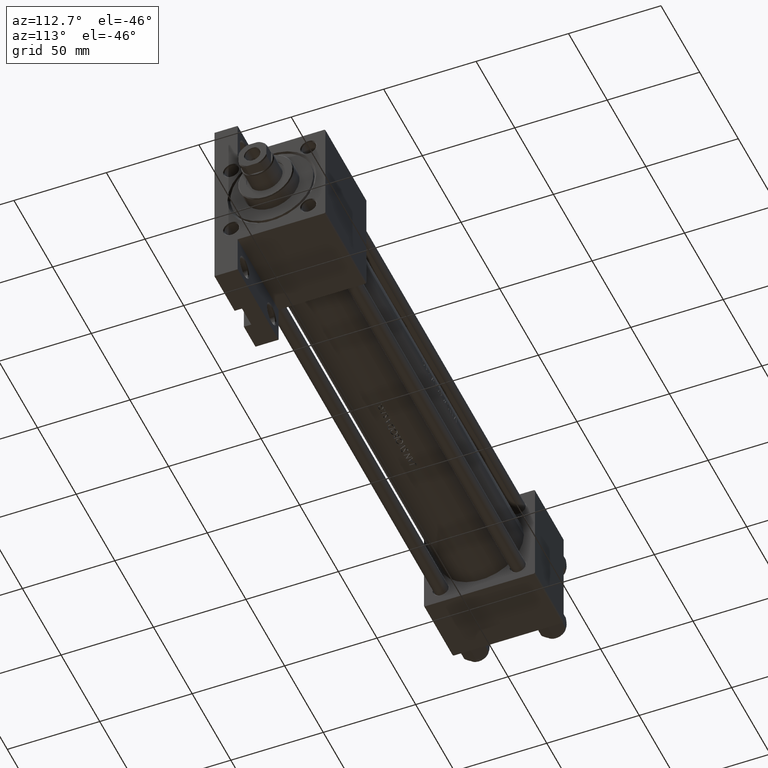
[diagram: clean part render]
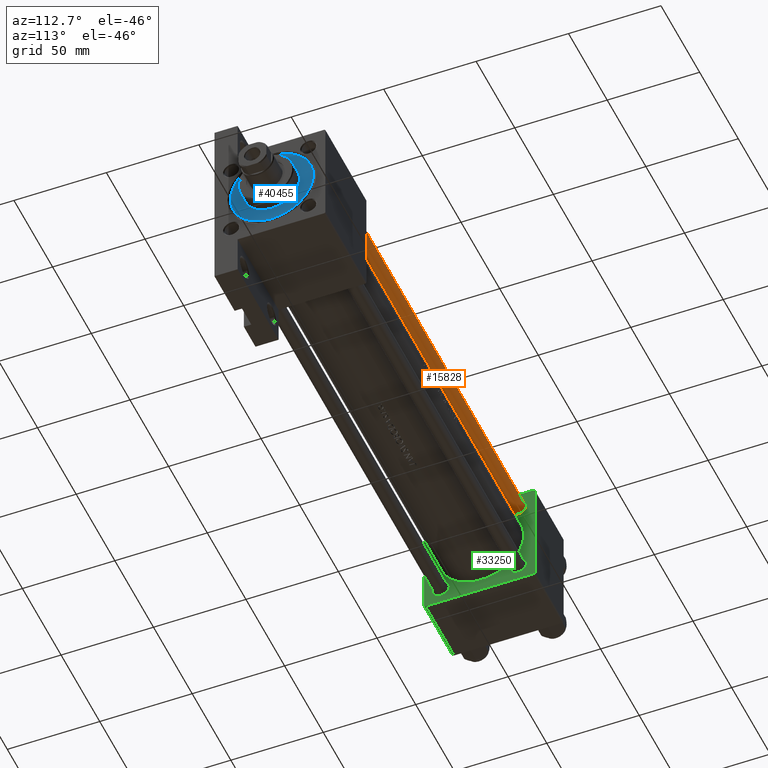
[diagram: same view with three faces highlighted in distinct colors, each labeled with its STEP entity id]
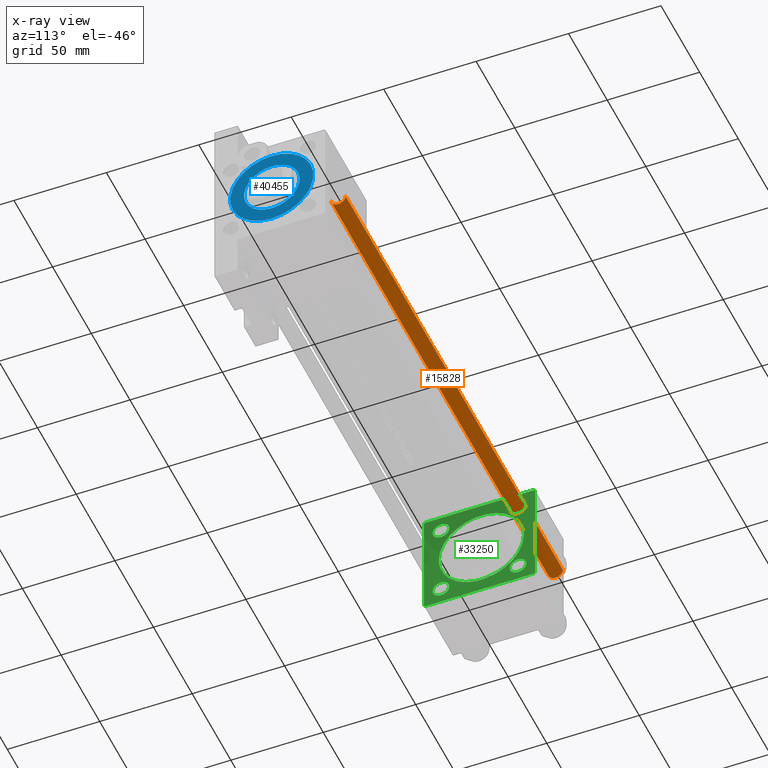
[diagram: x-ray of the same camera — body ghosted, the three highlighted faces saturated]
A machine part, auxiliary view with three faces highlighted in distinct colors.
The next image is the same camera in x-ray (body ghosted, the three faces saturated) — at least one of them is partly hidden behind the body in this view.
Their STEP definitions:

[orange] entity #15828 — the highlighted cylindrical surface (edge-blend (fillet) strip) has radius 4 mm, axis along (1, -0, 0).
#1460 = DIRECTION ( 'NONE',  ( 1.000000000000000000, 0.000000000000000000, 0.000000000000000000 ) ) ;
#2012 = VECTOR ( 'NONE', #28932, 1000.000000000000000 ) ;
#8051 = VERTEX_POINT ( 'NONE', #27177 ) ;
#8538 = CARTESIAN_POINT ( 'NONE',  ( 4.000000000000000000, 4.898587196589412829E-16, 281.5000000000000000 ) ) ;
#8824 = ORIENTED_EDGE ( 'NONE', *, *, #22101, .T. ) ;
#9134 = ORIENTED_EDGE ( 'NONE', *, *, #17937, .F. ) ;
#11052 = DIRECTION ( 'NONE',  ( -0.000000000000000000, -0.000000000000000000, -1.000000000000000000 ) ) ;
#13973 = CARTESIAN_POINT ( 'NONE',  ( -4.000000000000000000, 0.000000000000000000, 0.5000000000000559552 ) ) ;
#14753 = CARTESIAN_POINT ( 'NONE',  ( 0.000000000000000000, 0.000000000000000000, 282.0000000000000000 ) ) ;
#15828 = ADVANCED_FACE ( 'NONE', ( #44590 ), #22137, .T. ) ;
#17831 = LINE ( 'NONE', #25230, #2012 ) ;
#17937 = EDGE_CURVE ( 'NONE', #8051, #32412, #20787, .T. ) ;
#20174 = DIRECTION ( 'NONE',  ( -0.000000000000000000, -0.000000000000000000, 1.000000000000000000 ) ) ;
#20787 = LINE ( 'NONE', #35848, #37940 ) ;
#20835 = VERTEX_POINT ( 'NONE', #26588 ) ;
#22101 = EDGE_CURVE ( 'NONE', #20835, #32412, #28486, .T. ) ;
#22137 = CYLINDRICAL_SURFACE ( 'NONE', #25274, 4.000000000000000000 ) ;
#25230 = CARTESIAN_POINT ( 'NONE',  ( 4.000000000000000000, 4.898587196589412829E-16, 282.0000000000000000 ) ) ;
#25274 = AXIS2_PLACEMENT_3D ( 'NONE', #14753, #11052, #26063 ) ;
#26063 = DIRECTION ( 'NONE',  ( -1.000000000000000000, 0.000000000000000000, 0.000000000000000000 ) ) ;
#26588 = CARTESIAN_POINT ( 'NONE',  ( 4.000000000000000000, 4.898587196589412829E-16, 0.5000000000000559552 ) ) ;
#27122 = AXIS2_PLACEMENT_3D ( 'NONE', #46377, #39225, #31566 ) ;
#27177 = CARTESIAN_POINT ( 'NONE',  ( -4.000000000000000000, 0.000000000000000000, 281.5000000000000000 ) ) ;
#27216 = EDGE_CURVE ( 'NONE', #8051, #42656, #42074, .T. ) ;
#28486 = CIRCLE ( 'NONE', #34814, 4.000000000000000000 ) ;
#28932 = DIRECTION ( 'NONE',  ( -0.000000000000000000, -0.000000000000000000, -1.000000000000000000 ) ) ;
#31566 = DIRECTION ( 'NONE',  ( 1.000000000000000000, 0.000000000000000000, 0.000000000000000000 ) ) ;
#32389 = DIRECTION ( 'NONE',  ( -0.000000000000000000, -0.000000000000000000, -1.000000000000000000 ) ) ;
#32412 = VERTEX_POINT ( 'NONE', #13973 ) ;
#33501 = ORIENTED_EDGE ( 'NONE', *, *, #45645, .T. ) ;
#34814 = AXIS2_PLACEMENT_3D ( 'NONE', #39167, #20174, #1460 ) ;
#35317 = EDGE_LOOP ( 'NONE', ( #37739, #33501, #8824, #9134 ) ) ;
#35848 = CARTESIAN_POINT ( 'NONE',  ( -4.000000000000000000, 0.000000000000000000, 282.0000000000000000 ) ) ;
#37739 = ORIENTED_EDGE ( 'NONE', *, *, #27216, .T. ) ;
#37940 = VECTOR ( 'NONE', #32389, 1000.000000000000000 ) ;
#39167 = CARTESIAN_POINT ( 'NONE',  ( 0.000000000000000000, 0.000000000000000000, 0.5000000000000559552 ) ) ;
#39225 = DIRECTION ( 'NONE',  ( 0.000000000000000000, 0.000000000000000000, -1.000000000000000000 ) ) ;
#42074 = CIRCLE ( 'NONE', #27122, 4.000000000000000000 ) ;
#42656 = VERTEX_POINT ( 'NONE', #8538 ) ;
#44590 = FACE_OUTER_BOUND ( 'NONE', #35317, .T. ) ;
#45645 = EDGE_CURVE ( 'NONE', #42656, #20835, #17831, .T. ) ;
#46377 = CARTESIAN_POINT ( 'NONE',  ( 0.000000000000000000, 0.000000000000000000, 281.5000000000000000 ) ) ;

[blue] entity #40455 — the highlighted planar face has unit normal (1, 0, 0).
#496 = EDGE_CURVE ( 'NONE', #36124, #35655, #2513, .T. ) ;
#1737 = AXIS2_PLACEMENT_3D ( 'NONE', #38181, #9076, #26822 ) ;
#2317 = CARTESIAN_POINT ( 'NONE',  ( 0.000000000000000000, 0.000000000000000000, 28.69999999999999929 ) ) ;
#2425 = DIRECTION ( 'NONE',  ( 1.000000000000000000, 0.000000000000000000, 0.000000000000000000 ) ) ;
#2513 = CIRCLE ( 'NONE', #39527, 15.00000000000000000 ) ;
#2560 = FACE_BOUND ( 'NONE', #37857, .T. ) ;
#4028 = EDGE_LOOP ( 'NONE', ( #34813, #33672 ) ) ;
#6379 = DIRECTION ( 'NONE',  ( 0.000000000000000000, 0.000000000000000000, 1.000000000000000000 ) ) ;
#6523 = PLANE ( 'NONE',  #31740 ) ;
#6624 = CARTESIAN_POINT ( 'NONE',  ( 0.000000000000000000, 0.000000000000000000, 28.69999999999999929 ) ) ;
#8006 = CIRCLE ( 'NONE', #1737, 15.00000000000000000 ) ;
#8978 = CIRCLE ( 'NONE', #19186, 22.50000000000000355 ) ;
#9076 = DIRECTION ( 'NONE',  ( 0.000000000000000000, 0.000000000000000000, 1.000000000000000000 ) ) ;
#10071 = DIRECTION ( 'NONE',  ( 1.000000000000000000, 0.000000000000000000, 0.000000000000000000 ) ) ;
#11956 = VERTEX_POINT ( 'NONE', #44526 ) ;
#13394 = FACE_OUTER_BOUND ( 'NONE', #4028, .T. ) ;
#16396 = DIRECTION ( 'NONE',  ( 0.000000000000000000, 0.000000000000000000, 1.000000000000000000 ) ) ;
#16809 = ORIENTED_EDGE ( 'NONE', *, *, #496, .F. ) ;
#16847 = EDGE_CURVE ( 'NONE', #35655, #36124, #8006, .T. ) ;
#17334 = DIRECTION ( 'NONE',  ( 1.000000000000000000, 0.000000000000000000, -0.000000000000000000 ) ) ;
#19186 = AXIS2_PLACEMENT_3D ( 'NONE', #6624, #6379, #2425 ) ;
#26411 = EDGE_CURVE ( 'NONE', #11956, #32274, #8978, .T. ) ;
#26822 = DIRECTION ( 'NONE',  ( 1.000000000000000000, 0.000000000000000000, 0.000000000000000000 ) ) ;
#27187 = CIRCLE ( 'NONE', #28743, 22.50000000000000355 ) ;
#28743 = AXIS2_PLACEMENT_3D ( 'NONE', #47531, #47777, #10071 ) ;
#29580 = EDGE_CURVE ( 'NONE', #32274, #11956, #27187, .T. ) ;
#30945 = CARTESIAN_POINT ( 'NONE',  ( 0.000000000000000000, 0.000000000000000000, 28.69999999999999929 ) ) ;
#31423 = DIRECTION ( 'NONE',  ( 1.000000000000000000, 0.000000000000000000, 0.000000000000000000 ) ) ;
#31482 = ORIENTED_EDGE ( 'NONE', *, *, #16847, .F. ) ;
#31740 = AXIS2_PLACEMENT_3D ( 'NONE', #2317, #32378, #17334 ) ;
#32274 = VERTEX_POINT ( 'NONE', #33681 ) ;
#32378 = DIRECTION ( 'NONE',  ( 0.000000000000000000, 0.000000000000000000, 1.000000000000000000 ) ) ;
#33672 = ORIENTED_EDGE ( 'NONE', *, *, #26411, .T. ) ;
#33681 = CARTESIAN_POINT ( 'NONE',  ( -22.50000000000000355, 0.000000000000000000, 28.69999999999999929 ) ) ;
#34813 = ORIENTED_EDGE ( 'NONE', *, *, #29580, .T. ) ;
#35655 = VERTEX_POINT ( 'NONE', #39521 ) ;
#36124 = VERTEX_POINT ( 'NONE', #44010 ) ;
#37857 = EDGE_LOOP ( 'NONE', ( #16809, #31482 ) ) ;
#38181 = CARTESIAN_POINT ( 'NONE',  ( 0.000000000000000000, 0.000000000000000000, 28.69999999999999929 ) ) ;
#39521 = CARTESIAN_POINT ( 'NONE',  ( 15.00000000000000000, 1.836970198721029589E-15, 28.69999999999999929 ) ) ;
#39527 = AXIS2_PLACEMENT_3D ( 'NONE', #30945, #16396, #31423 ) ;
#40455 = ADVANCED_FACE ( 'NONE', ( #2560, #13394 ), #6523, .T. ) ;
#44010 = CARTESIAN_POINT ( 'NONE',  ( -15.00000000000000000, 0.000000000000000000, 28.69999999999999929 ) ) ;
#44526 = CARTESIAN_POINT ( 'NONE',  ( 22.50000000000000355, 2.755455298081545172E-15, 28.69999999999999929 ) ) ;
#47531 = CARTESIAN_POINT ( 'NONE',  ( 0.000000000000000000, 0.000000000000000000, 28.69999999999999929 ) ) ;
#47777 = DIRECTION ( 'NONE',  ( 0.000000000000000000, 0.000000000000000000, 1.000000000000000000 ) ) ;

[green] entity #33250 — the highlighted planar face has unit normal (-1, 0, -0).
#361 = DIRECTION ( 'NONE',  ( -1.000000000000000000, 0.000000000000000000, -0.000000000000000000 ) ) ;
#491 = CARTESIAN_POINT ( 'NONE',  ( 37.00000000000000000, 29.99999999999999289, -29.50000000000000000 ) ) ;
#629 = VECTOR ( 'NONE', #36515, 1000.000000000000114 ) ;
#1111 = CARTESIAN_POINT ( 'NONE',  ( 37.00000000000000711, 2.694222958124176809E-15, -22.00000000000000000 ) ) ;
#1121 = LINE ( 'NONE', #35134, #13316 ) ;
#1801 = AXIS2_PLACEMENT_3D ( 'NONE', #12567, #1964, #43126 ) ;
#1964 = DIRECTION ( 'NONE',  ( -1.000000000000000000, 0.000000000000000000, -0.000000000000000000 ) ) ;
#2013 = CARTESIAN_POINT ( 'NONE',  ( 37.00000000000000000, 20.84999999999999787, 20.85000000000000142 ) ) ;
#2378 = EDGE_CURVE ( 'NONE', #28726, #21878, #32460, .T. ) ;
#2593 = ORIENTED_EDGE ( 'NONE', *, *, #8909, .T. ) ;
#2998 = CARTESIAN_POINT ( 'NONE',  ( 37.00000000000000000, -20.84999999999999076, -20.85000000000000497 ) ) ;
#3463 = CARTESIAN_POINT ( 'NONE',  ( 37.00000000000000000, 20.84999999999999787, -25.34999999999994813 ) ) ;
#3860 = VERTEX_POINT ( 'NONE', #37776 ) ;
#3879 = LINE ( 'NONE', #14718, #19826 ) ;
#3965 = CARTESIAN_POINT ( 'NONE',  ( 37.00000000000000000, -20.84999999999999076, 16.35000000000005471 ) ) ;
#4572 = VERTEX_POINT ( 'NONE', #37780 ) ;
#4644 = LINE ( 'NONE', #36105, #29712 ) ;
#5196 = ORIENTED_EDGE ( 'NONE', *, *, #23916, .T. ) ;
#5234 = EDGE_LOOP ( 'NONE', ( #13851, #45436, #6798, #13996, #14037, #5196, #19630, #2593 ) ) ;
#5413 = EDGE_CURVE ( 'NONE', #46495, #45533, #47901, .T. ) ;
#5490 = CARTESIAN_POINT ( 'NONE',  ( 37.00000000000000711, -1.224646799147354686E-16, 24.00000000000000000 ) ) ;
#5621 = CARTESIAN_POINT ( 'NONE',  ( 37.00000000000000000, 0.000000000000000000, 0.000000000000000000 ) ) ;
#5819 = DIRECTION ( 'NONE',  ( -1.000000000000000000, 0.000000000000000000, -0.000000000000000000 ) ) ;
#6146 = EDGE_CURVE ( 'NONE', #38043, #20582, #22132, .T. ) ;
#6183 = VECTOR ( 'NONE', #44818, 1000.000000000000114 ) ;
#6226 = LINE ( 'NONE', #10152, #629 ) ;
#6250 = VERTEX_POINT ( 'NONE', #37359 ) ;
#6798 = ORIENTED_EDGE ( 'NONE', *, *, #42606, .F. ) ;
#7398 = VERTEX_POINT ( 'NONE', #3965 ) ;
#7743 = EDGE_CURVE ( 'NONE', #39550, #21005, #4644, .T. ) ;
#8909 = EDGE_CURVE ( 'NONE', #6250, #21005, #6226, .T. ) ;
#8912 = CIRCLE ( 'NONE', #41970, 23.00000000000000000 ) ;
#9222 = DIRECTION ( 'NONE',  ( -0.000000000000000000, -0.7071067811865474617, -0.7071067811865474617 ) ) ;
#9323 = FACE_BOUND ( 'NONE', #35630, .T. ) ;
#9540 = CARTESIAN_POINT ( 'NONE',  ( 37.00000000000000000, 29.99999999999999289, 29.50000000000000000 ) ) ;
#10152 = CARTESIAN_POINT ( 'NONE',  ( 37.00000000000000000, -29.50000000000001066, -30.00000000000000711 ) ) ;
#10501 = AXIS2_PLACEMENT_3D ( 'NONE', #48145, #40506, #36085 ) ;
#10525 = CARTESIAN_POINT ( 'NONE',  ( 37.00000000000000000, -20.84999999999999076, -25.34999999999995168 ) ) ;
#10556 = EDGE_CURVE ( 'NONE', #3860, #28327, #45577, .T. ) ;
#10784 = EDGE_CURVE ( 'NONE', #4572, #6250, #1121, .T. ) ;
#11023 = DIRECTION ( 'NONE',  ( 0.000000000000000000, -1.000000000000000000, -1.156482317317871725E-16 ) ) ;
#11151 = ORIENTED_EDGE ( 'NONE', *, *, #25641, .T. ) ;
#11743 = DIRECTION ( 'NONE',  ( 0.000000000000000000, 0.000000000000000000, -1.000000000000000000 ) ) ;
#12567 = CARTESIAN_POINT ( 'NONE',  ( 37.00000000000000000, -20.84999999999999076, 20.85000000000000497 ) ) ;
#12865 = VERTEX_POINT ( 'NONE', #31682 ) ;
#12911 = AXIS2_PLACEMENT_3D ( 'NONE', #16640, #39085, #16162 ) ;
#13007 = FACE_BOUND ( 'NONE', #29734, .T. ) ;
#13316 = VECTOR ( 'NONE', #38588, 1000.000000000000000 ) ;
#13491 = DIRECTION ( 'NONE',  ( -0.000000000000000000, 0.000000000000000000, 1.000000000000000000 ) ) ;
#13851 = ORIENTED_EDGE ( 'NONE', *, *, #7743, .F. ) ;
#13996 = ORIENTED_EDGE ( 'NONE', *, *, #6146, .T. ) ;
#14037 = ORIENTED_EDGE ( 'NONE', *, *, #21241, .T. ) ;
#14550 = DIRECTION ( 'NONE',  ( 0.000000000000000000, 0.000000000000000000, 1.000000000000000000 ) ) ;
#14575 = VERTEX_POINT ( 'NONE', #43665 ) ;
#14718 = CARTESIAN_POINT ( 'NONE',  ( 37.00000000000000000, 29.99999999999999289, 30.00000000000000000 ) ) ;
#15915 = CARTESIAN_POINT ( 'NONE',  ( 37.00000000000000000, 29.99999999999999289, 30.00000000000000000 ) ) ;
#15917 = ORIENTED_EDGE ( 'NONE', *, *, #29877, .T. ) ;
#16162 = DIRECTION ( 'NONE',  ( 0.000000000000000000, 0.000000000000000000, 1.000000000000000000 ) ) ;
#16486 = EDGE_LOOP ( 'NONE', ( #42702, #18977 ) ) ;
#16640 = CARTESIAN_POINT ( 'NONE',  ( 37.00000000000000000, -20.84999999999999076, -20.85000000000000497 ) ) ;
#16653 = CARTESIAN_POINT ( 'NONE',  ( 37.00000000000000000, 20.84999999999999787, 20.85000000000000142 ) ) ;
#16834 = EDGE_LOOP ( 'NONE', ( #15917, #41151 ) ) ;
#17520 = DIRECTION ( 'NONE',  ( -1.000000000000000000, 0.000000000000000000, -0.000000000000000000 ) ) ;
#18283 = CIRCLE ( 'NONE', #1801, 4.499999999999948486 ) ;
#18676 = ORIENTED_EDGE ( 'NONE', *, *, #36638, .T. ) ;
#18942 = CARTESIAN_POINT ( 'NONE',  ( 37.00000000000000000, 20.84999999999999787, 25.34999999999994813 ) ) ;
#18977 = ORIENTED_EDGE ( 'NONE', *, *, #41511, .T. ) ;
#19016 = ORIENTED_EDGE ( 'NONE', *, *, #40497, .T. ) ;
#19150 = AXIS2_PLACEMENT_3D ( 'NONE', #2013, #361, #26979 ) ;
#19330 = AXIS2_PLACEMENT_3D ( 'NONE', #31689, #5819, #46735 ) ;
#19440 = CARTESIAN_POINT ( 'NONE',  ( 37.00000000000000711, -1.224646799147354686E-16, 1.000000000000000888 ) ) ;
#19630 = ORIENTED_EDGE ( 'NONE', *, *, #10784, .T. ) ;
#19826 = VECTOR ( 'NONE', #11023, 1000.000000000000000 ) ;
#19892 = DIRECTION ( 'NONE',  ( 0.000000000000000000, -1.000000000000000000, -1.156482317317871725E-16 ) ) ;
#20282 = CARTESIAN_POINT ( 'NONE',  ( 37.00000000000000000, 29.49999999999997868, -30.00000000000000000 ) ) ;
#20389 = FACE_BOUND ( 'NONE', #16834, .T. ) ;
#20582 = VERTEX_POINT ( 'NONE', #39765 ) ;
#20654 = CARTESIAN_POINT ( 'NONE',  ( 37.00000000000000000, 29.99999999999999289, -29.50000000000000000 ) ) ;
#20726 = ORIENTED_EDGE ( 'NONE', *, *, #23371, .F. ) ;
#20881 = AXIS2_PLACEMENT_3D ( 'NONE', #5621, #32238, #13491 ) ;
#21005 = VERTEX_POINT ( 'NONE', #42116 ) ;
#21241 = EDGE_CURVE ( 'NONE', #20582, #12865, #3879, .T. ) ;
#21878 = VERTEX_POINT ( 'NONE', #18942 ) ;
#22132 = LINE ( 'NONE', #37185, #6183 ) ;
#22186 = ORIENTED_EDGE ( 'NONE', *, *, #5413, .F. ) ;
#22206 = VERTEX_POINT ( 'NONE', #20654 ) ;
#22924 = LINE ( 'NONE', #491, #26229 ) ;
#23371 = EDGE_CURVE ( 'NONE', #45533, #46495, #8912, .T. ) ;
#23394 = CIRCLE ( 'NONE', #36779, 4.499999999999948486 ) ;
#23916 = EDGE_CURVE ( 'NONE', #12865, #4572, #42970, .T. ) ;
#23957 = DIRECTION ( 'NONE',  ( 1.000000000000000000, -0.000000000000000000, 0.000000000000000000 ) ) ;
#24343 = FACE_OUTER_BOUND ( 'NONE', #5234, .T. ) ;
#24878 = CIRCLE ( 'NONE', #19330, 4.499999999999948486 ) ;
#25641 = EDGE_CURVE ( 'NONE', #14575, #32351, #47552, .T. ) ;
#26109 = DIRECTION ( 'NONE',  ( -0.000000000000000000, 0.7071067811865574537, 0.7071067811865376918 ) ) ;
#26198 = CIRCLE ( 'NONE', #10501, 4.499999999999948486 ) ;
#26229 = VECTOR ( 'NONE', #26109, 999.9999999999998863 ) ;
#26979 = DIRECTION ( 'NONE',  ( 0.000000000000000000, 0.000000000000000000, 1.000000000000000000 ) ) ;
#27980 = DIRECTION ( 'NONE',  ( 0.000000000000000000, 0.000000000000000000, 1.000000000000000000 ) ) ;
#28250 = AXIS2_PLACEMENT_3D ( 'NONE', #36651, #36408, #29230 ) ;
#28327 = VERTEX_POINT ( 'NONE', #3463 ) ;
#28726 = VERTEX_POINT ( 'NONE', #42584 ) ;
#29230 = DIRECTION ( 'NONE',  ( 0.000000000000000000, 0.000000000000000000, 1.000000000000000000 ) ) ;
#29712 = VECTOR ( 'NONE', #19892, 1000.000000000000000 ) ;
#29734 = EDGE_LOOP ( 'NONE', ( #48122, #19016 ) ) ;
#29877 = EDGE_CURVE ( 'NONE', #28327, #3860, #24878, .T. ) ;
#30972 = CIRCLE ( 'NONE', #19150, 4.499999999999948486 ) ;
#31682 = CARTESIAN_POINT ( 'NONE',  ( 37.00000000000000000, -29.49999999999998579, 29.99999999999999289 ) ) ;
#31689 = CARTESIAN_POINT ( 'NONE',  ( 37.00000000000000000, 20.84999999999999787, -20.85000000000000142 ) ) ;
#32238 = DIRECTION ( 'NONE',  ( -1.000000000000000000, 0.000000000000000000, -0.000000000000000000 ) ) ;
#32351 = VERTEX_POINT ( 'NONE', #10525 ) ;
#32460 = CIRCLE ( 'NONE', #42676, 4.499999999999948486 ) ;
#32598 = VECTOR ( 'NONE', #11743, 1000.000000000000000 ) ;
#33250 = ADVANCED_FACE ( 'NONE', ( #39147, #20389, #13007, #43082, #9323, #24343 ), #39390, .F. ) ;
#35101 = CARTESIAN_POINT ( 'NONE',  ( 37.00000000000000000, -20.84999999999999076, 25.34999999999995168 ) ) ;
#35134 = CARTESIAN_POINT ( 'NONE',  ( 37.00000000000000000, -30.00000000000000000, 29.99999999999999289 ) ) ;
#35630 = EDGE_LOOP ( 'NONE', ( #22186, #20726 ) ) ;
#36085 = DIRECTION ( 'NONE',  ( 0.000000000000000000, 0.000000000000000000, 1.000000000000000000 ) ) ;
#36105 = CARTESIAN_POINT ( 'NONE',  ( 37.00000000000000000, 29.99999999999999289, -30.00000000000000000 ) ) ;
#36370 = VERTEX_POINT ( 'NONE', #35101 ) ;
#36408 = DIRECTION ( 'NONE',  ( -1.000000000000000000, 0.000000000000000000, -0.000000000000000000 ) ) ;
#36515 = DIRECTION ( 'NONE',  ( 0.000000000000000000, 0.7071067811865474617, -0.7071067811865474617 ) ) ;
#36638 = EDGE_CURVE ( 'NONE', #32351, #14575, #23394, .T. ) ;
#36651 = CARTESIAN_POINT ( 'NONE',  ( 37.00000000000000000, 20.84999999999999787, -20.85000000000000142 ) ) ;
#36779 = AXIS2_PLACEMENT_3D ( 'NONE', #2998, #17520, #14550 ) ;
#36876 = AXIS2_PLACEMENT_3D ( 'NONE', #38521, #23957, #42450 ) ;
#37185 = CARTESIAN_POINT ( 'NONE',  ( 37.00000000000000000, 29.49999999999999289, 30.00000000000000000 ) ) ;
#37359 = CARTESIAN_POINT ( 'NONE',  ( 37.00000000000000000, -30.00000000000000000, -29.50000000000001776 ) ) ;
#37776 = CARTESIAN_POINT ( 'NONE',  ( 37.00000000000000000, 20.84999999999999787, -16.35000000000005116 ) ) ;
#37780 = CARTESIAN_POINT ( 'NONE',  ( 37.00000000000000000, -30.00000000000000000, 29.49999999999999289 ) ) ;
#38043 = VERTEX_POINT ( 'NONE', #9540 ) ;
#38521 = CARTESIAN_POINT ( 'NONE',  ( 37.00000000000000711, -1.224646799147354686E-16, 1.000000000000000888 ) ) ;
#38576 = EDGE_CURVE ( 'NONE', #7398, #36370, #18283, .T. ) ;
#38588 = DIRECTION ( 'NONE',  ( 0.000000000000000000, 0.000000000000000000, -1.000000000000000000 ) ) ;
#39085 = DIRECTION ( 'NONE',  ( -1.000000000000000000, 0.000000000000000000, -0.000000000000000000 ) ) ;
#39147 = FACE_BOUND ( 'NONE', #46633, .T. ) ;
#39390 = PLANE ( 'NONE',  #20881 ) ;
#39550 = VERTEX_POINT ( 'NONE', #20282 ) ;
#39765 = CARTESIAN_POINT ( 'NONE',  ( 37.00000000000000000, 29.49999999999999289, 30.00000000000000000 ) ) ;
#40497 = EDGE_CURVE ( 'NONE', #36370, #7398, #26198, .T. ) ;
#40506 = DIRECTION ( 'NONE',  ( -1.000000000000000000, 0.000000000000000000, -0.000000000000000000 ) ) ;
#41151 = ORIENTED_EDGE ( 'NONE', *, *, #10556, .T. ) ;
#41511 = EDGE_CURVE ( 'NONE', #21878, #28726, #30972, .T. ) ;
#41824 = EDGE_CURVE ( 'NONE', #39550, #22206, #22924, .T. ) ;
#41970 = AXIS2_PLACEMENT_3D ( 'NONE', #19440, #44853, #48784 ) ;
#42116 = CARTESIAN_POINT ( 'NONE',  ( 37.00000000000000000, -29.50000000000000000, -30.00000000000000711 ) ) ;
#42450 = DIRECTION ( 'NONE',  ( 0.000000000000000000, 0.000000000000000000, 1.000000000000000000 ) ) ;
#42584 = CARTESIAN_POINT ( 'NONE',  ( 37.00000000000000000, 20.84999999999999787, 16.35000000000005116 ) ) ;
#42606 = EDGE_CURVE ( 'NONE', #38043, #22206, #45747, .T. ) ;
#42676 = AXIS2_PLACEMENT_3D ( 'NONE', #16653, #46733, #27980 ) ;
#42702 = ORIENTED_EDGE ( 'NONE', *, *, #2378, .T. ) ;
#42970 = LINE ( 'NONE', #43464, #44335 ) ;
#43082 = FACE_BOUND ( 'NONE', #16486, .T. ) ;
#43126 = DIRECTION ( 'NONE',  ( 0.000000000000000000, 0.000000000000000000, 1.000000000000000000 ) ) ;
#43464 = CARTESIAN_POINT ( 'NONE',  ( 37.00000000000000000, -30.00000000000000000, 29.49999999999999289 ) ) ;
#43665 = CARTESIAN_POINT ( 'NONE',  ( 37.00000000000000000, -20.84999999999999076, -16.35000000000005471 ) ) ;
#44335 = VECTOR ( 'NONE', #9222, 1000.000000000000114 ) ;
#44818 = DIRECTION ( 'NONE',  ( 0.000000000000000000, -0.7071067811865474617, 0.7071067811865474617 ) ) ;
#44853 = DIRECTION ( 'NONE',  ( 1.000000000000000000, -0.000000000000000000, 0.000000000000000000 ) ) ;
#45436 = ORIENTED_EDGE ( 'NONE', *, *, #41824, .T. ) ;
#45533 = VERTEX_POINT ( 'NONE', #1111 ) ;
#45577 = CIRCLE ( 'NONE', #28250, 4.499999999999948486 ) ;
#45747 = LINE ( 'NONE', #15915, #32598 ) ;
#46495 = VERTEX_POINT ( 'NONE', #5490 ) ;
#46633 = EDGE_LOOP ( 'NONE', ( #18676, #11151 ) ) ;
#46733 = DIRECTION ( 'NONE',  ( -1.000000000000000000, 0.000000000000000000, -0.000000000000000000 ) ) ;
#46735 = DIRECTION ( 'NONE',  ( 0.000000000000000000, 0.000000000000000000, 1.000000000000000000 ) ) ;
#47552 = CIRCLE ( 'NONE', #12911, 4.499999999999948486 ) ;
#47901 = CIRCLE ( 'NONE', #36876, 23.00000000000000000 ) ;
#48122 = ORIENTED_EDGE ( 'NONE', *, *, #38576, .T. ) ;
#48145 = CARTESIAN_POINT ( 'NONE',  ( 37.00000000000000000, -20.84999999999999076, 20.85000000000000497 ) ) ;
#48784 = DIRECTION ( 'NONE',  ( 0.000000000000000000, 0.000000000000000000, 1.000000000000000000 ) ) ;